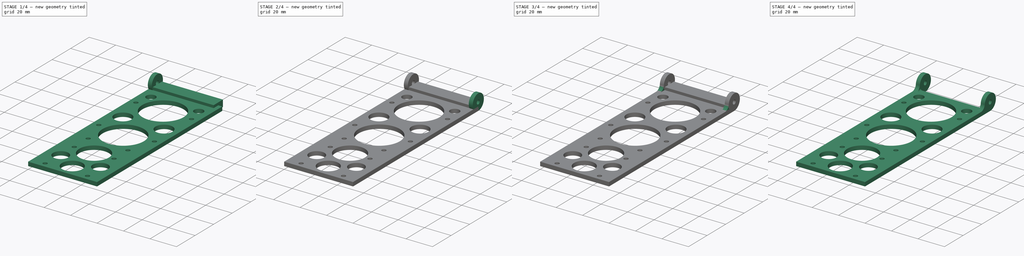
[diagram: build sequence overview — one tinted view per stage of 4, left to right]
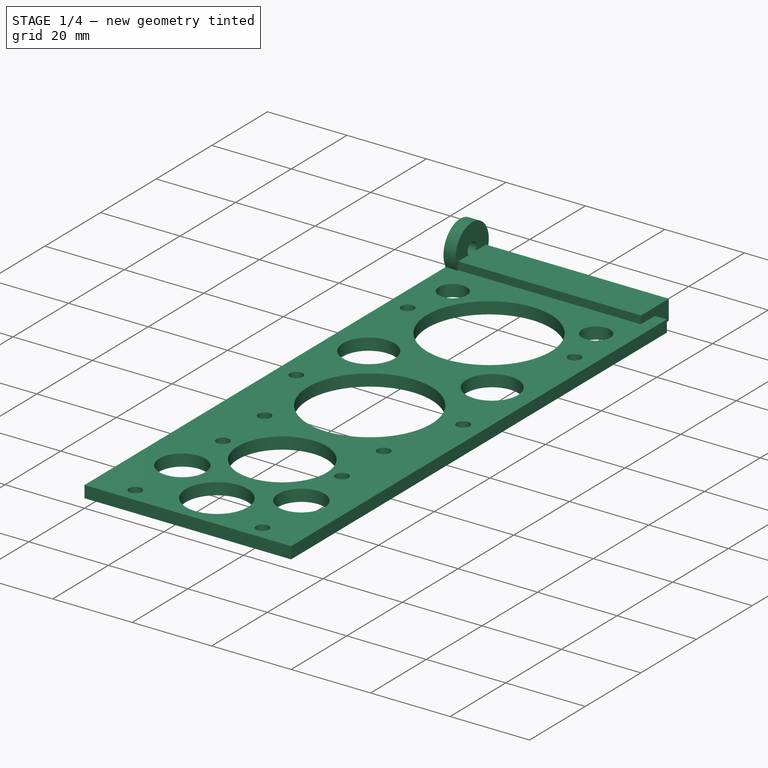
[diagram: stage 1 of 4 — iso view after this stage's code; geometry added in this stage tinted green]
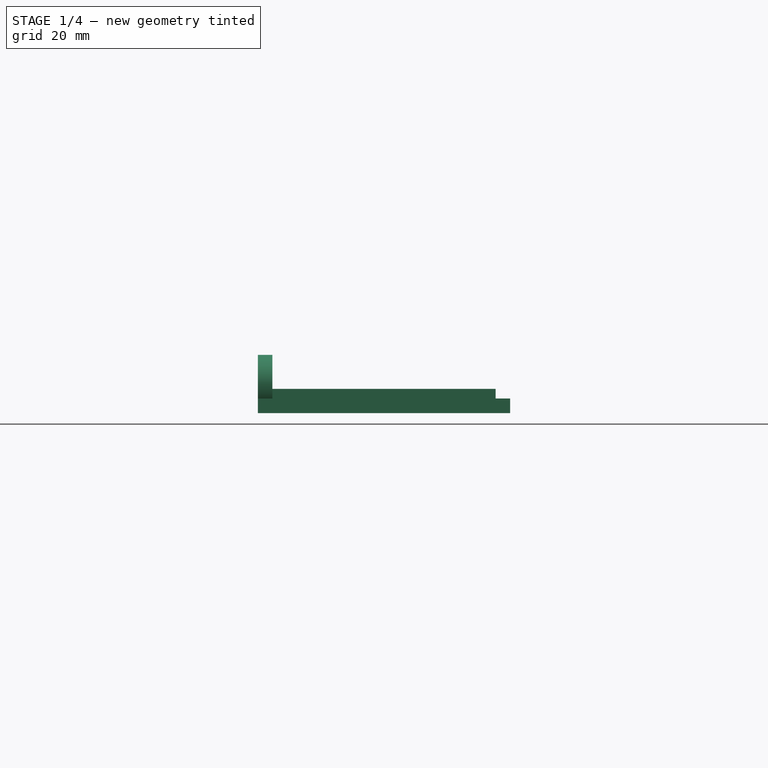
[diagram: stage 1 of 4 — front view after this stage's code; geometry added in this stage tinted green]
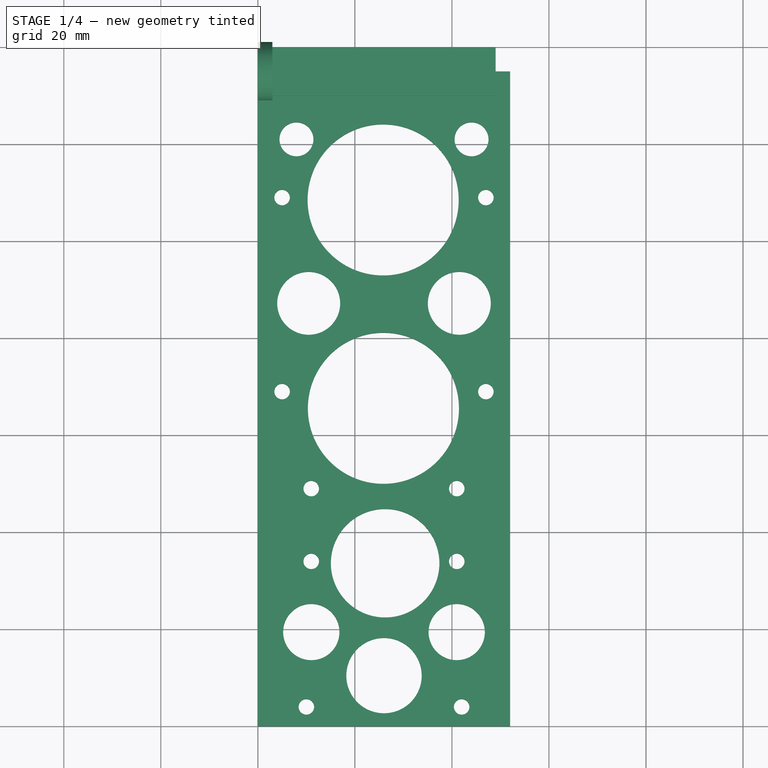
[diagram: stage 1 of 4 — top view after this stage's code; geometry added in this stage tinted green]
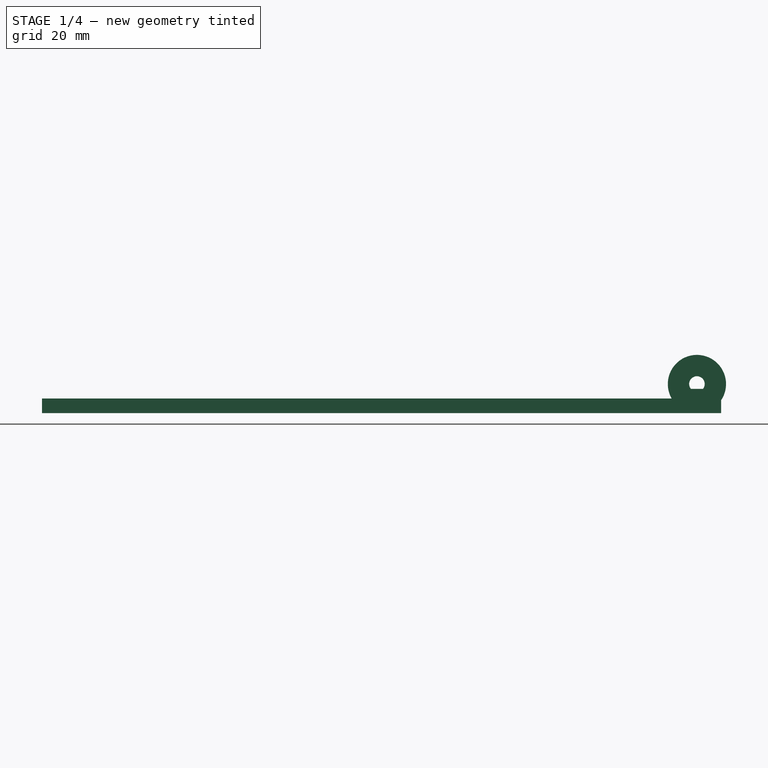
[diagram: stage 1 of 4 — right view after this stage's code; geometry added in this stage tinted green]
FCSTD DOCUMENT  (FreeCAD 0.16R6712 (Git))
Label: opy_support
License: All rights reserved
LicenseURL: http://en.wikipedia.org/wiki/All_rights_reserved
objects: Sketcher::SketchObject×4, PartDesign::Pad×4, PartDesign::Fillet×4, Part::Fuse×2, Part::Cut×1
note: 19 computed .brp shape members not serialized (recipe doc carries the construction recipe); baked Part::Feature solids carry a one-line shape summary decoded from their .brp

FEATURE [Sketcher::SketchObject] Sketch
  sketch-geometry (35):
    g0: LineSegment StartX=0 StartY=0 StartZ=0 EndX=52 EndY=0 EndZ=0
    g1: LineSegment StartX=52 StartY=0 StartZ=0 EndX=52 EndY=135 EndZ=0
    g2: LineSegment StartX=52 StartY=135 StartZ=0 EndX=0 EndY=135 EndZ=0
    g3: LineSegment StartX=0 StartY=135 StartZ=0 EndX=0 EndY=0 EndZ=0
    g4: LineSegment [constr] StartX=26 StartY=135 StartZ=0 EndX=26 EndY=0 EndZ=0
    g5: LineSegment [constr] StartX=0 StartY=4 StartZ=0 EndX=52 EndY=4 EndZ=0
    g6: Circle CenterX=10 CenterY=4 CenterZ=0 NormalX=0 NormalY=0 NormalZ=1 Radius=1.6
    g7: Circle CenterX=42 CenterY=4 CenterZ=0 NormalX=0 NormalY=0 NormalZ=1 Radius=1.6
    g8: LineSegment [constr] StartX=0 StartY=34 StartZ=0 EndX=52 EndY=34 EndZ=0
    g9: Circle CenterX=11 CenterY=34 CenterZ=0 NormalX=0 NormalY=0 NormalZ=1 Radius=1.6
    g10: Circle CenterX=41 CenterY=34 CenterZ=0 NormalX=0 NormalY=0 NormalZ=1 Radius=1.6
    g11: LineSegment [constr] StartX=0 StartY=49 StartZ=0 EndX=52 EndY=49 EndZ=0
    g12: LineSegment [constr] StartX=0 StartY=69 StartZ=0 EndX=52 EndY=69 EndZ=0
    g13: LineSegment [constr] StartX=0 StartY=109 StartZ=0 EndX=52 EndY=109 EndZ=0
    g14: Circle CenterX=11 CenterY=49 CenterZ=0 NormalX=0 NormalY=0 NormalZ=1 Radius=1.6
    g15: Circle CenterX=41 CenterY=49 CenterZ=0 NormalX=0 NormalY=0 NormalZ=1 Radius=1.6
    g16: Circle CenterX=5 CenterY=69 CenterZ=0 NormalX=0 NormalY=0 NormalZ=1 Radius=1.6
    g17: Circle CenterX=47 CenterY=69 CenterZ=0 NormalX=0 NormalY=0 NormalZ=1 Radius=1.6
    g18: Circle CenterX=5 CenterY=109 CenterZ=0 NormalX=0 NormalY=0 NormalZ=1 Radius=1.6
    g19: Circle CenterX=47 CenterY=109 CenterZ=0 NormalX=0 NormalY=0 NormalZ=1 Radius=1.6
    g20: LineSegment [constr] StartX=11 StartY=49 StartZ=0 EndX=11 EndY=34 EndZ=0
    g21: LineSegment [constr] StartX=5 StartY=109 StartZ=0 EndX=5 EndY=69 EndZ=0
    g22: Circle CenterX=25.8229 CenterY=108.507 CenterZ=0 NormalX=0 NormalY=0 NormalZ=1 Radius=15.575
    g23: Circle CenterX=25.8796 CenterY=65.5488 CenterZ=0 NormalX=0 NormalY=0 NormalZ=1 Radius=15.575
    g24: Circle CenterX=26.231 CenterY=33.6131 CenterZ=0 NormalX=0 NormalY=0 NormalZ=1 Radius=11.1867
    g25: Circle CenterX=10.4777 CenterY=87.1972 CenterZ=0 NormalX=0 NormalY=0 NormalZ=1 Radius=6.49024
    g26: Circle CenterX=41.5223 CenterY=87.1972 CenterZ=0 NormalX=0 NormalY=0 NormalZ=1 Radius=6.49024
    g27: LineSegment [constr] StartX=10.4777 StartY=87.1972 StartZ=0 EndX=41.5223 EndY=87.1972 EndZ=0
    g28: Circle CenterX=7.95659 CenterY=121 CenterZ=0 NormalX=0 NormalY=0 NormalZ=1 Radius=3.5
    g29: LineSegment [constr] StartX=7.95659 StartY=121 StartZ=0 EndX=44.0434 EndY=121 EndZ=0
    g30: Circle CenterX=44.0434 CenterY=121 CenterZ=0 NormalX=0 NormalY=0 NormalZ=1 Radius=3.5
    g31: Circle CenterX=26 CenterY=10.45 CenterZ=0 NormalX=0 NormalY=0 NormalZ=1 Radius=7.77075
    g32: Circle CenterX=11.0156 CenterY=19.4289 CenterZ=0 NormalX=0 NormalY=0 NormalZ=1 Radius=5.80076
    g33: LineSegment [constr] StartX=11.0156 StartY=19.4289 StartZ=0 EndX=40.9844 EndY=19.4289 EndZ=0
    g34: Circle CenterX=40.9844 CenterY=19.4289 CenterZ=0 NormalX=0 NormalY=0 NormalZ=1 Radius=5.80076
  constraints (87):
    c: Coincident(g0,g1)
    c: Coincident(g1,g2)
    c: Coincident(g2,g3)
    c: Coincident(g3,g0)
    c: Horizontal(g0)
    c: Horizontal(g2)
    c: Vertical(g1)
    c: Vertical(g3)
    c: Coincident(g0,g-1)
    c: DistanceX(g2,g2) = 52
    c: DistanceY(g1,g1) = 135
    c: PointOnObject(g4,g2)
    c: PointOnObject(g4,g0)
    c: Symmetric(g2,g2,g4)
    c: PointOnObject(g5,g3)
    c: PointOnObject(g5,g1)
    c: Horizontal(g5)
    c: DistanceY(g0,g5) = 4
    c: PointOnObject(g6,g5)
    c: PointOnObject(g7,g5)
    c: Equal(g6,g7)
    c: Radius(g6) = 1.6
    c: Symmetric(g6,g7,g4)
    c: DistanceX(g6,g7) = 32
    c: PointOnObject(g8,g3)
    c: PointOnObject(g8,g1)
    c: Horizontal(g8)
    c: DistanceY(g5,g8) = 30
    c: PointOnObject(g9,g8)
    c: PointOnObject(g10,g8)
    c: PointOnObject(g11,g3)
    c: PointOnObject(g11,g1)
    c: Horizontal(g11)
    c: PointOnObject(g12,g3)
    c: PointOnObject(g12,g1)
    c: Horizontal(g12)
    c: PointOnObject(g13,g3)
    c: PointOnObject(g13,g1)
    c: Horizontal(g13)
    c: DistanceY(g8,g11) = 15
    c: DistanceY(g11,g12) = 20
    c: DistanceY(g12,g13) = 40
    c: PointOnObject(g14,g11)
    c: PointOnObject(g15,g11)
    c: PointOnObject(g16,g12)
    c: PointOnObject(g17,g12)
    c: PointOnObject(g18,g13)
    c: PointOnObject(g19,g13)
    c: Equal(g6,g9)
    c: Equal(g9,g10)
    c: Equal(g10,g14)
    c: Equal(g14,g15)
    c: Equal(g15,g16)
    c: Equal(g16,g17)
    c: Equal(g17,g18)
    c: Equal(g18,g19)
    c: Symmetric(g9,g10,g4)
    c: Symmetric(g14,g15,g4)
    c: Symmetric(g16,g17,g4)
    c: Symmetric(g18,g19,g4)
    c: DistanceX(g9,g10) = 30
    c: Coincident(g20,g9)
    c: Coincident(g20,g14)
    c: Vertical(g20)
    c: DistanceX(g16,g17) = 42
    c: Coincident(g21,g18)
    c: Coincident(g21,g16)
    c: Vertical(g21)
    c: Equal(g25,g26)
    c: Coincident(g27,g25)
    c: Coincident(g27,g26)
    c: Horizontal(g27)
    c: Symmetric(g26,g25,g4)
    c: Coincident(g29,g28)
    c: Horizontal(g29)
    c: Symmetric(g28,g29,g4)
    c: Coincident(g30,g29)
    c: Equal(g28,g30)
    c: PointOnObject(g31,g4)
    c: Coincident(g33,g32)
    c: Horizontal(g33)
    c: Symmetric(g32,g33,g4)
    c: Coincident(g34,g33)
    c: Equal(g32,g34)
    c: Equal(g22,g23)
    c: Radius(g28) = 3.5
    c: DistanceY(g18,g28) = 12
FEATURE [PartDesign::Pad] Pad
  Length = 3
  Length2 = 100
  Sketch = -> Sketch
  Type = 0
FEATURE [Sketcher::SketchObject] Sketch001
  Placement = pos=(0,135,0) rot=(0.57735,0.57735,0.57735;2.0944rad)
  sketch-geometry (3):
    g0: LineSegment [constr] StartX=0 StartY=0 StartZ=0 EndX=0 EndY=6 EndZ=0
    g1: Circle CenterX=0 CenterY=6 CenterZ=0 NormalX=0 NormalY=0 NormalZ=1 Radius=6
    g2: Circle CenterX=0 CenterY=6 CenterZ=0 NormalX=0 NormalY=0 NormalZ=1 Radius=1.6
  constraints (7):
    c: Coincident(g0,g-1)
    c: Vertical(g0)
    c: DistanceY(g0,g0) = 6
    c: Coincident(g1,g0)
    c: PointOnObject(g-1,g1)
    c: Coincident(g2,g0)
    c: Radius(g2) = 1.6
FEATURE [PartDesign::Pad] Pad001
  Length = 3
  Length2 = 100
  Placement = pos=(0,135,0) rot=(0.57735,0.57735,0.57735;2.0944rad)
  Sketch = -> Sketch001
  Type = 0
FEATURE [Sketcher::SketchObject] Sketch003
  sketch-geometry (4):
    g0: LineSegment StartX=49 StartY=140 StartZ=0 EndX=3 EndY=140 EndZ=0
    g1: LineSegment StartX=3 StartY=140 StartZ=0 EndX=3 EndY=130 EndZ=0
    g2: LineSegment StartX=3 StartY=130 StartZ=0 EndX=49 EndY=130 EndZ=0
    g3: LineSegment StartX=49 StartY=130 StartZ=0 EndX=49 EndY=140 EndZ=0
  constraints (12):
    c: Coincident(g0,g1)
    c: Coincident(g1,g2)
    c: Coincident(g2,g3)
    c: Coincident(g3,g0)
    c: Horizontal(g0)
    c: Horizontal(g2)
    c: Vertical(g1)
    c: Vertical(g3)
    c: DistanceY(g-1,g1) = 130
    c: DistanceY(g3,g3) = 10
    c: DistanceX(g0,g0) = 46
    c: DistanceX(g-1,g0) = 3
FEATURE [PartDesign::Pad] Pad003
  Length = 5
  Length2 = 100
  Sketch = -> Sketch003
  Type = 0
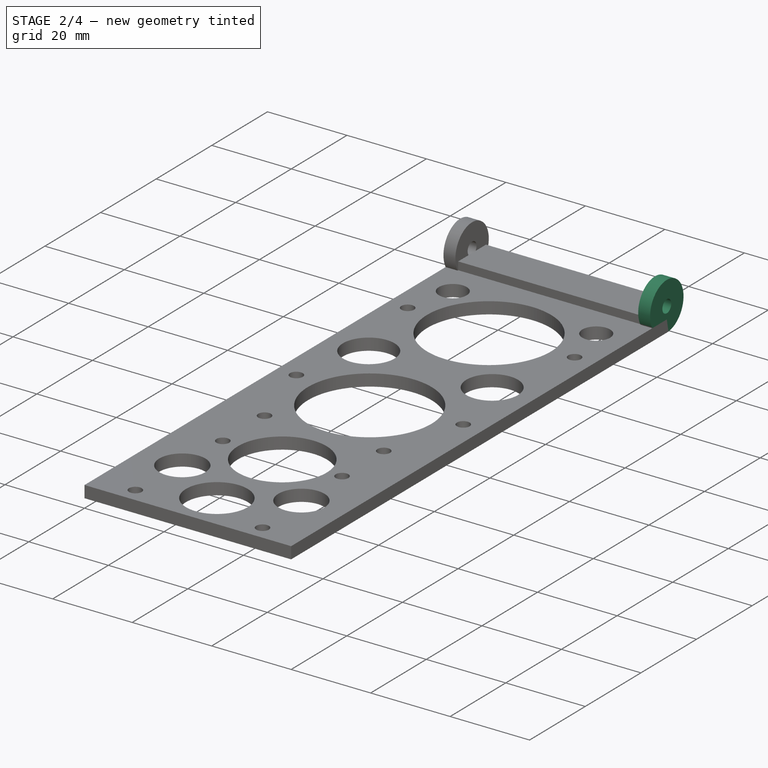
[diagram: stage 2 of 4 — iso view after this stage's code; geometry added in this stage tinted green]
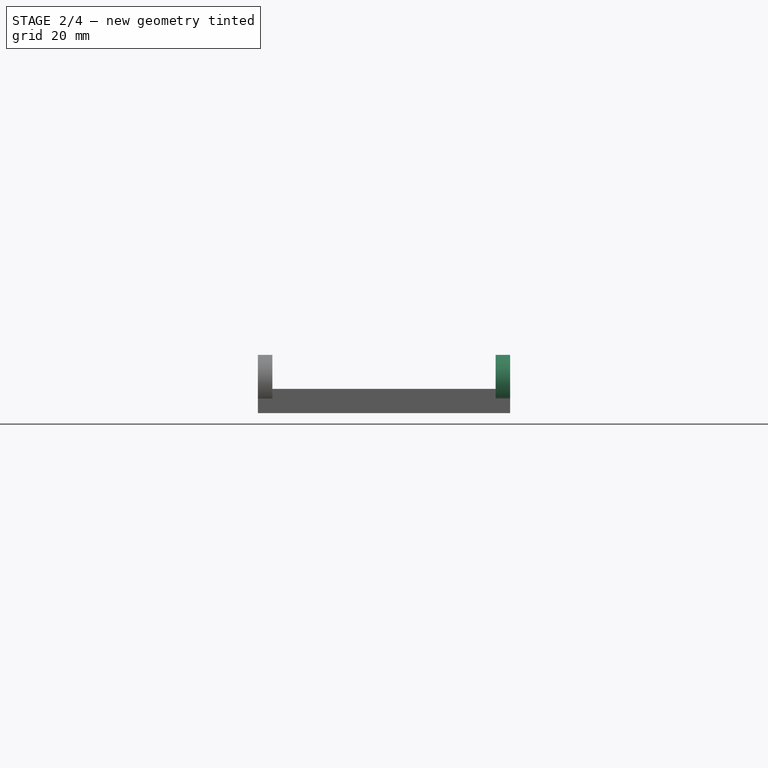
[diagram: stage 2 of 4 — front view after this stage's code; geometry added in this stage tinted green]
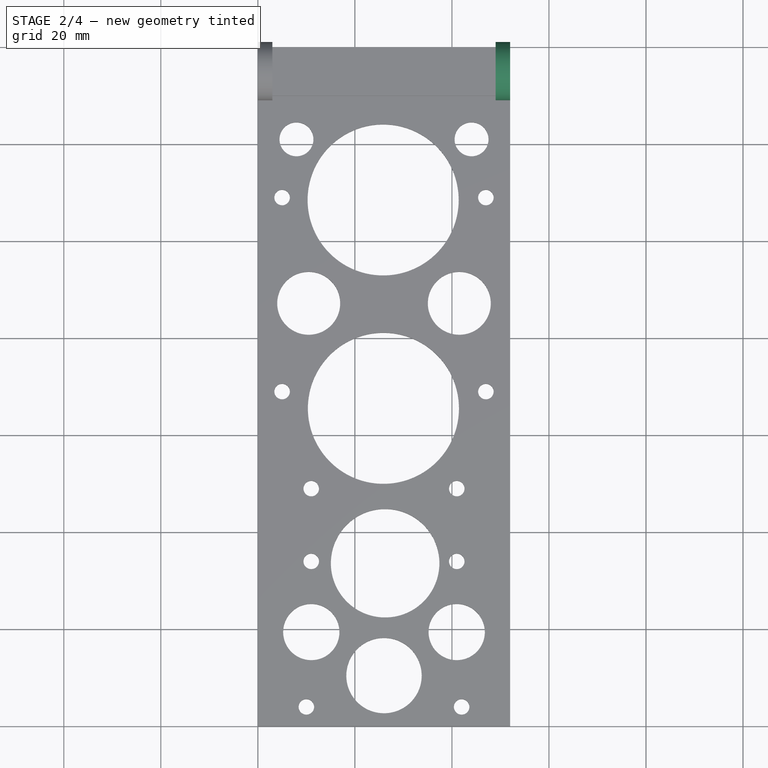
[diagram: stage 2 of 4 — top view after this stage's code; geometry added in this stage tinted green]
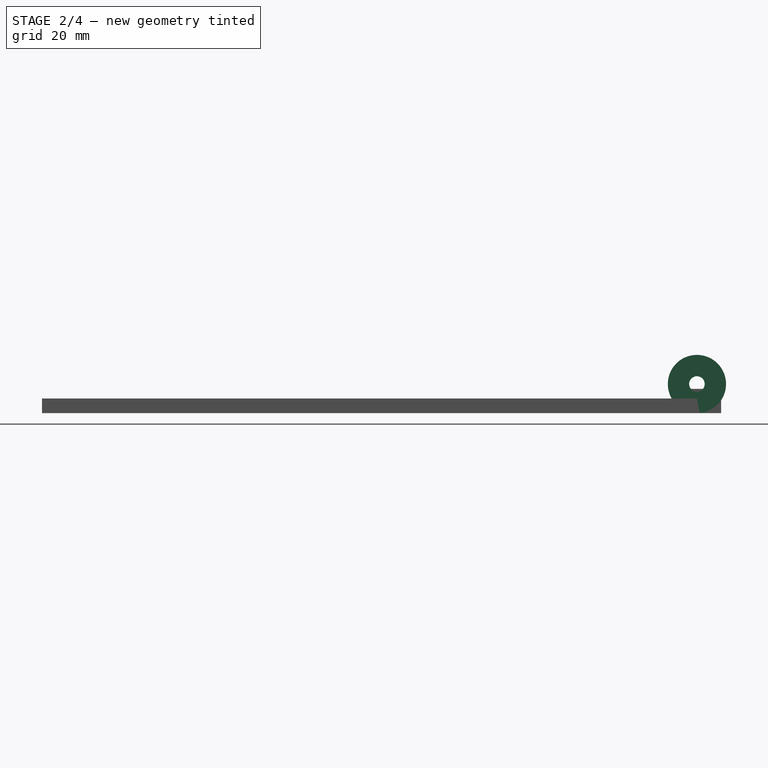
[diagram: stage 2 of 4 — right view after this stage's code; geometry added in this stage tinted green]
FEATURE [Sketcher::SketchObject] Sketch002
  Placement = pos=(49,135,0) rot=(0.57735,0.57735,0.57735;2.0944rad)
  sketch-geometry (3):
    g0: LineSegment [constr] StartX=0 StartY=0 StartZ=0 EndX=0 EndY=6 EndZ=0
    g1: Circle CenterX=0 CenterY=6 CenterZ=0 NormalX=0 NormalY=0 NormalZ=1 Radius=6
    g2: Circle CenterX=0 CenterY=6 CenterZ=0 NormalX=0 NormalY=0 NormalZ=1 Radius=1.6
  constraints (7):
    c: Coincident(g0,g-1)
    c: Vertical(g0)
    c: DistanceY(g0,g0) = 6
    c: Coincident(g1,g0)
    c: PointOnObject(g-1,g1)
    c: Coincident(g2,g0)
    c: Radius(g2) = 1.6
FEATURE [PartDesign::Pad] Pad002
  Length = 3
  Length2 = 100
  Placement = pos=(49,135,0) rot=(0.57735,0.57735,0.57735;2.0944rad)
  Sketch = -> Sketch002
  Type = 0
FEATURE [Part::Fuse] Fusion
  Base = -> Pad
  Tool = -> Pad001
FEATURE [Part::Fuse] Fusion001
  Base = -> Pad002
  Tool = -> Fusion
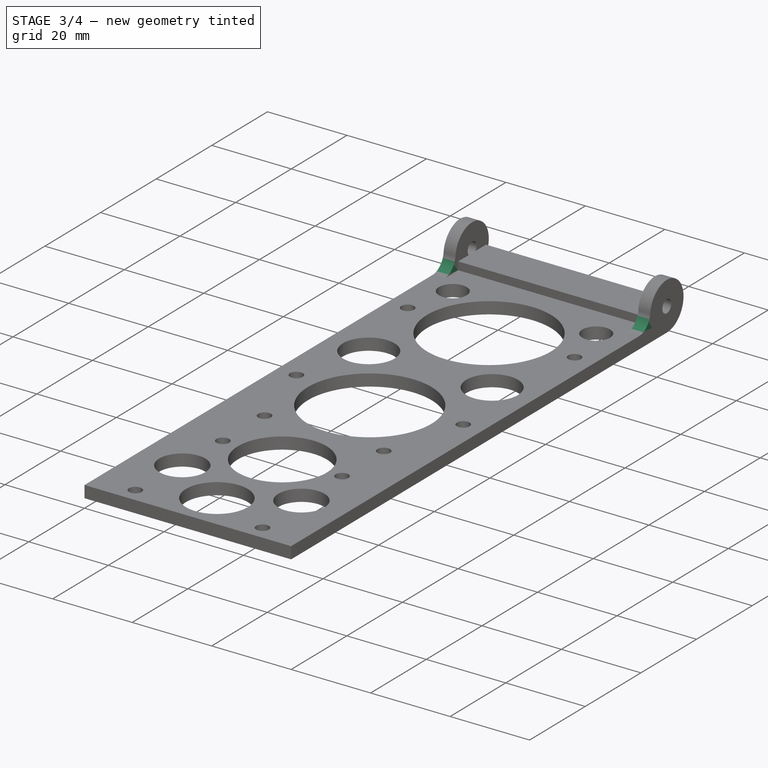
[diagram: stage 3 of 4 — iso view after this stage's code; geometry added in this stage tinted green]
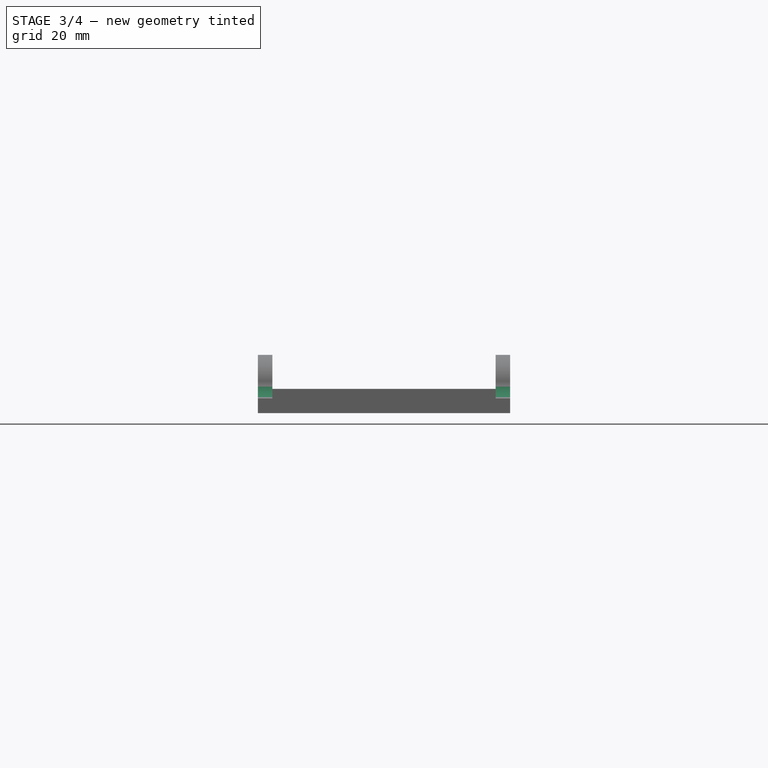
[diagram: stage 3 of 4 — front view after this stage's code; geometry added in this stage tinted green]
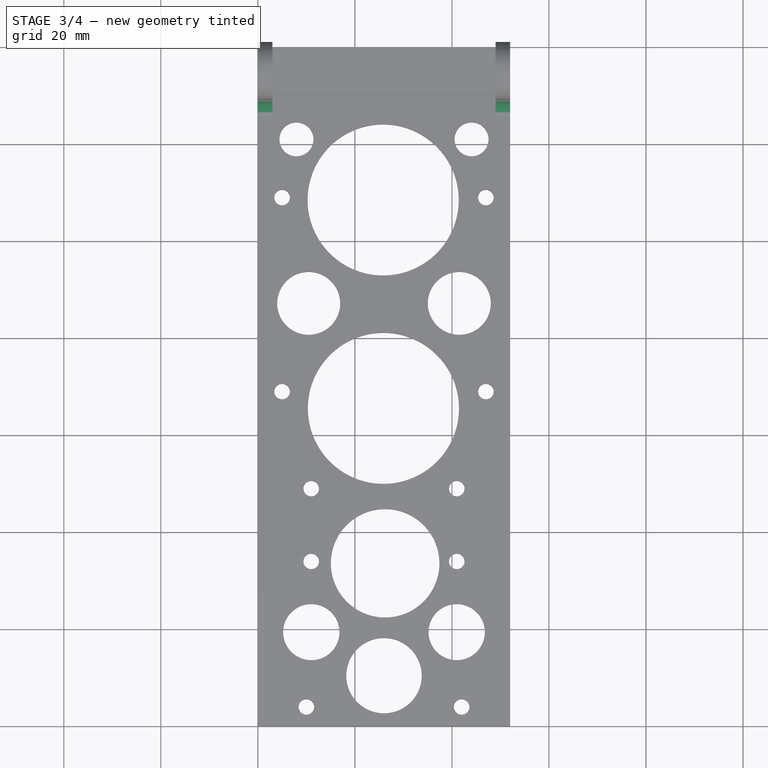
[diagram: stage 3 of 4 — top view after this stage's code; geometry added in this stage tinted green]
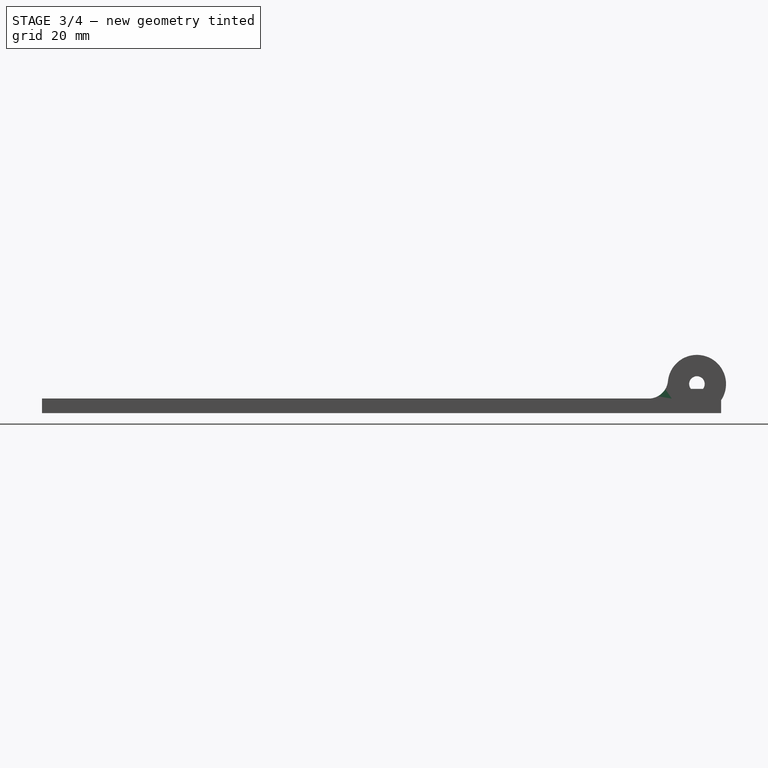
[diagram: stage 3 of 4 — right view after this stage's code; geometry added in this stage tinted green]
FEATURE [PartDesign::Fillet] Fillet
  Base = -> Fusion001 [Edge19]
  Radius = 4
FEATURE [PartDesign::Fillet] Fillet001
  Base = -> Fillet [Edge7]
  Radius = 4
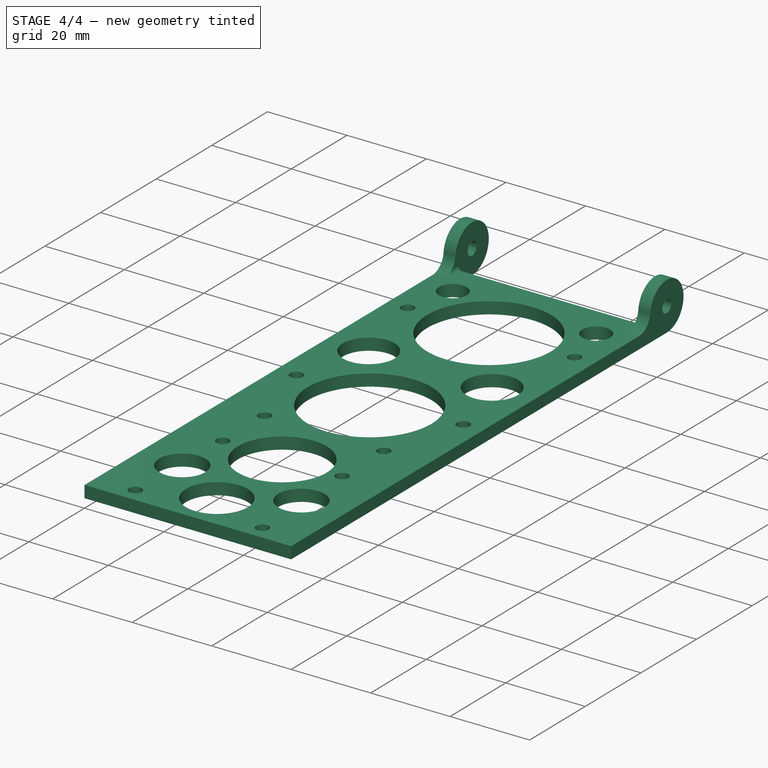
[diagram: stage 4 of 4 — iso view after this stage's code; geometry added in this stage tinted green]
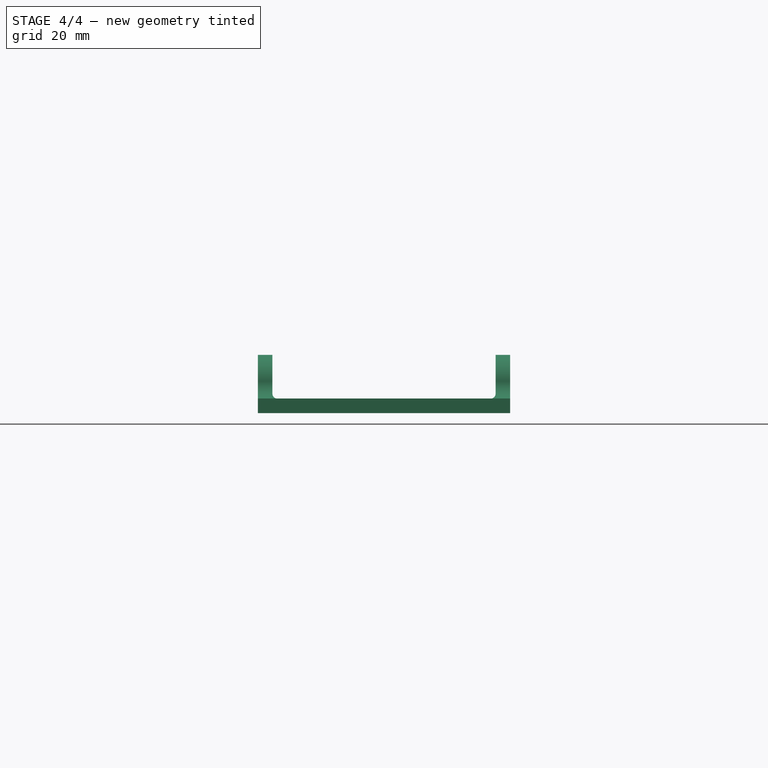
[diagram: stage 4 of 4 — front view after this stage's code; geometry added in this stage tinted green]
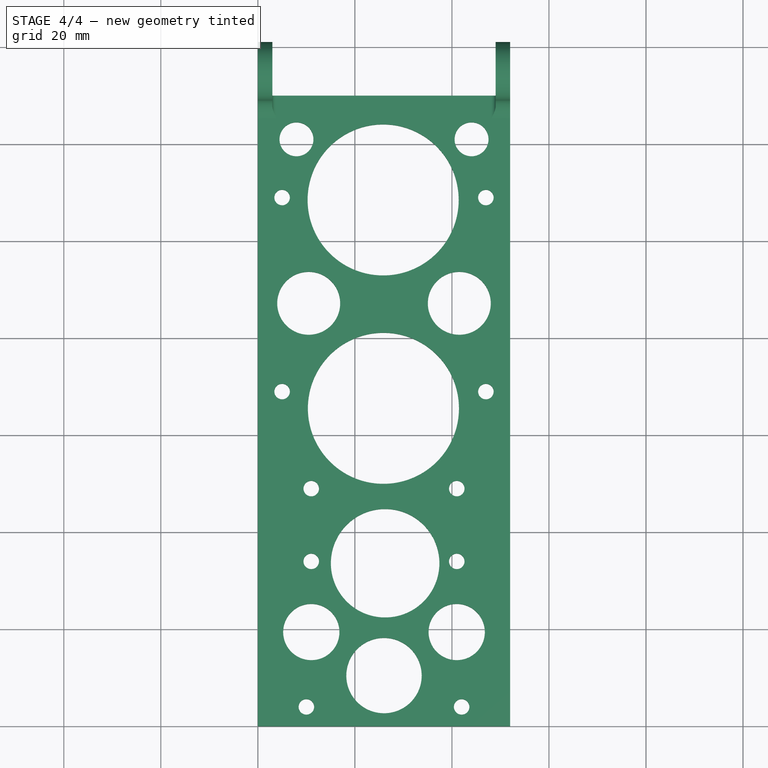
[diagram: stage 4 of 4 — top view after this stage's code; geometry added in this stage tinted green]
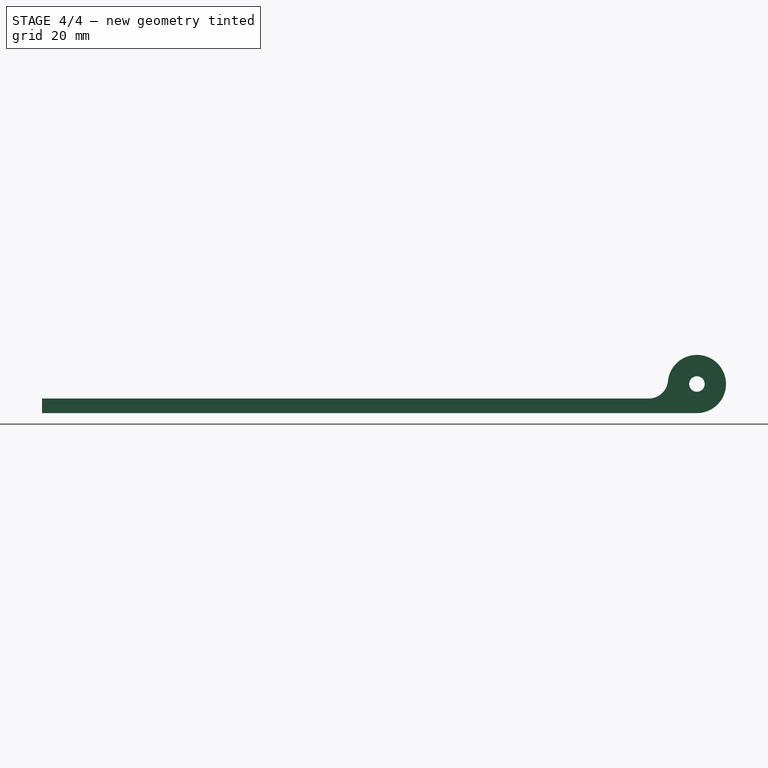
[diagram: stage 4 of 4 — right view after this stage's code; geometry added in this stage tinted green]
FEATURE [Part::Cut] Cut
  Base = -> Fillet001
  Tool = -> Pad003
FEATURE [PartDesign::Fillet] Fillet002
  Base = -> Cut [Edge6]
  Radius = 1
FEATURE [PartDesign::Fillet] Fillet003
  Base = -> Fillet002 [Edge5]
  Radius = 1
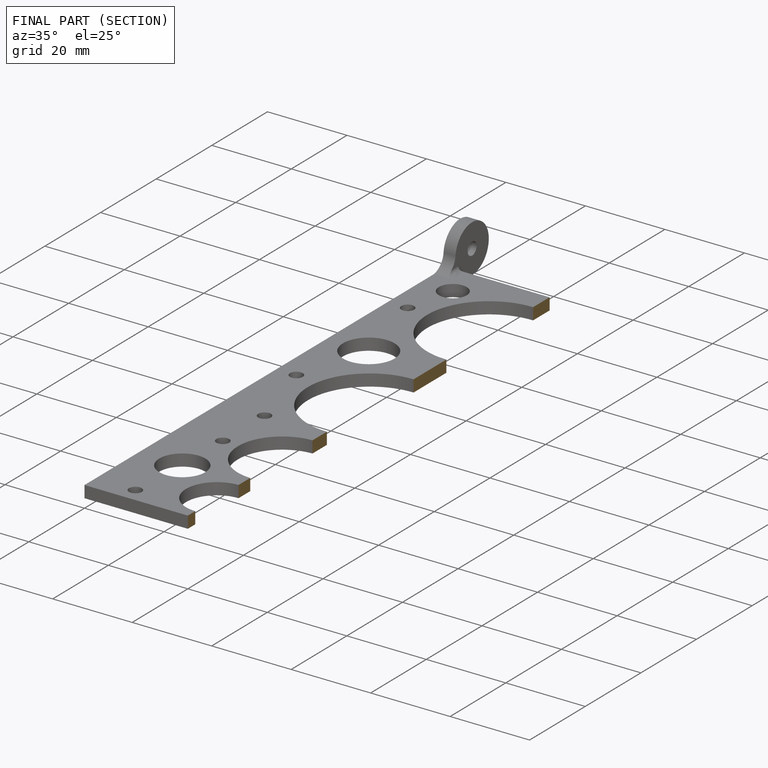
[diagram: finished part — half-section view (interior)]
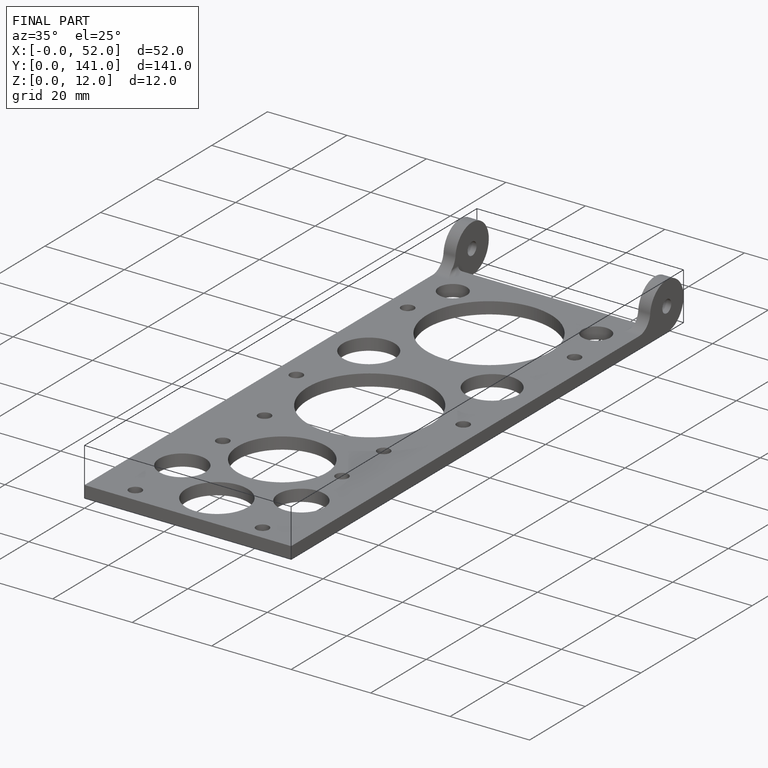
[diagram: finished part — iso view with bounding-box wireframe]
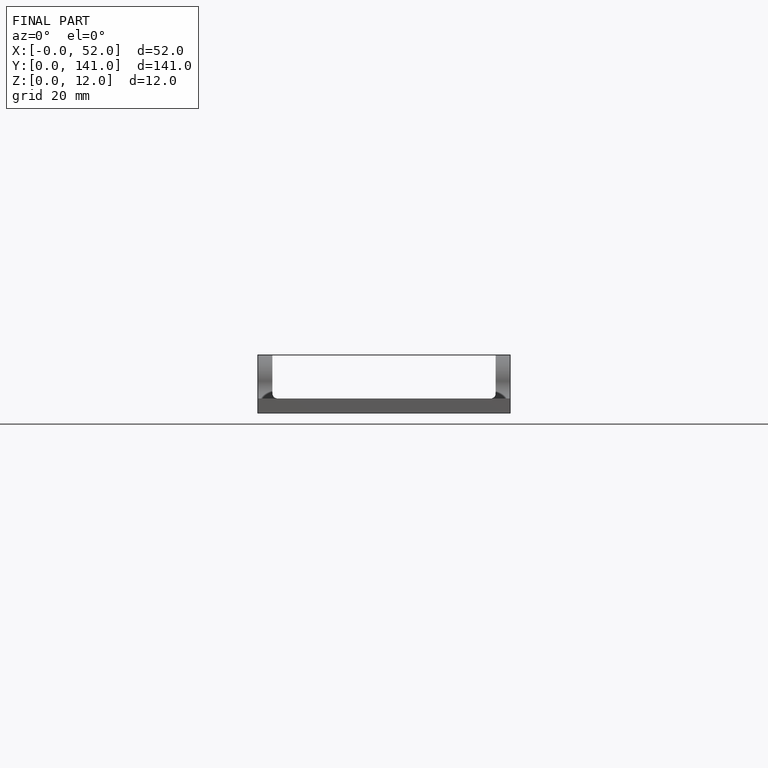
[diagram: finished part — front view with bounding-box wireframe]
